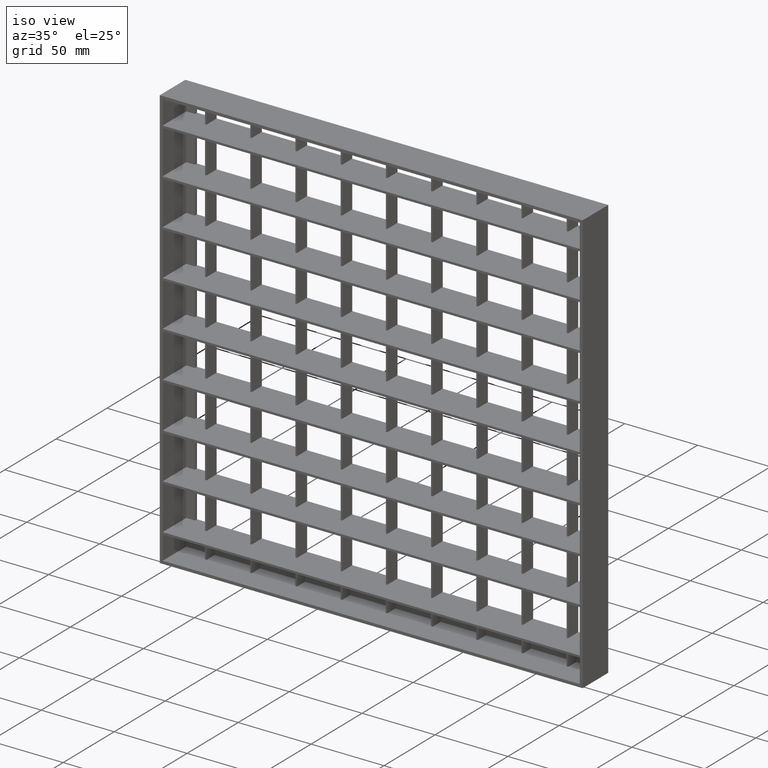
[diagram: clean part render]
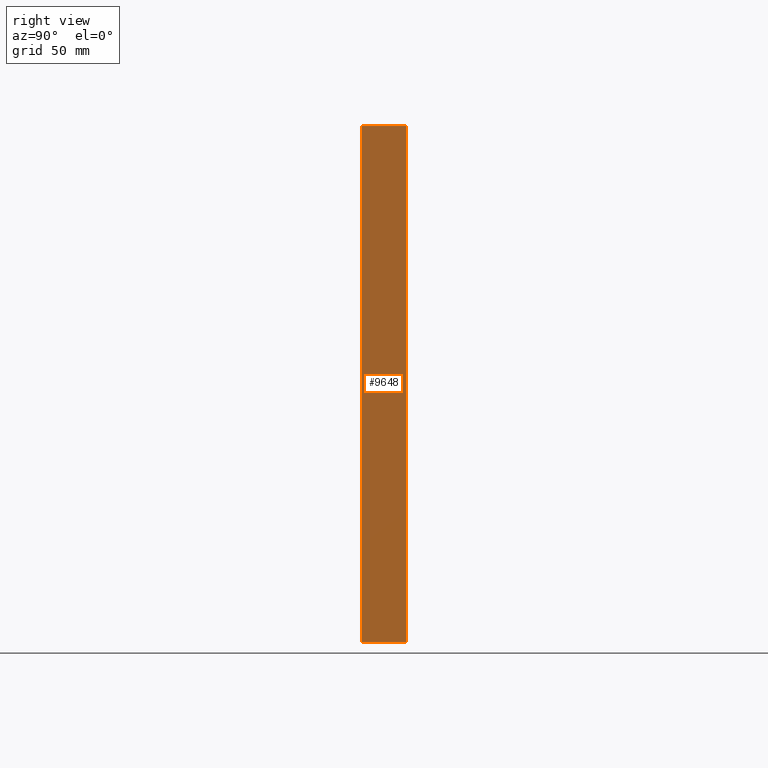
[diagram: tour spotlight — one face highlighted and labeled with its STEP entity id]
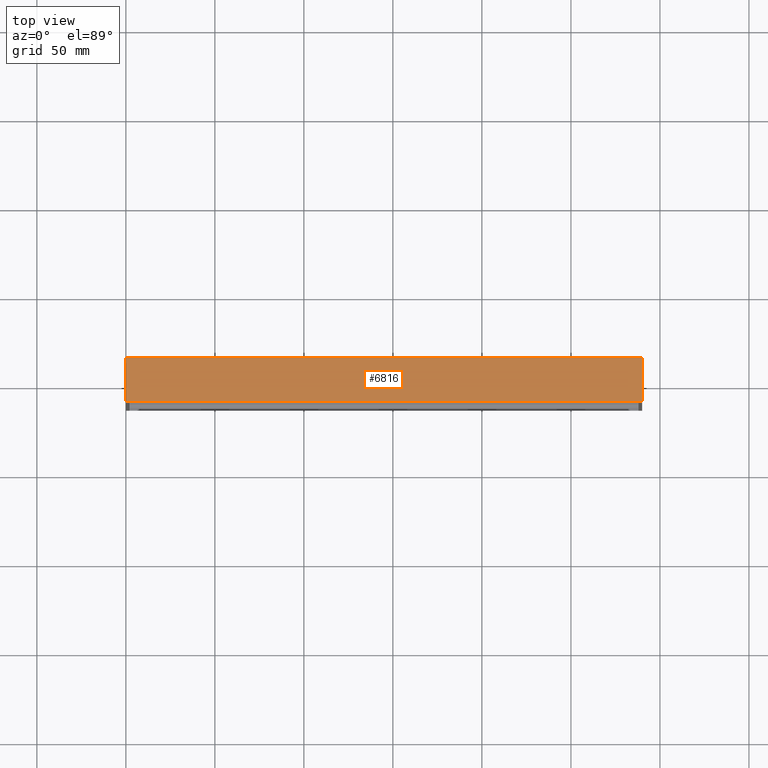
[diagram: tour spotlight — one face highlighted and labeled with its STEP entity id]
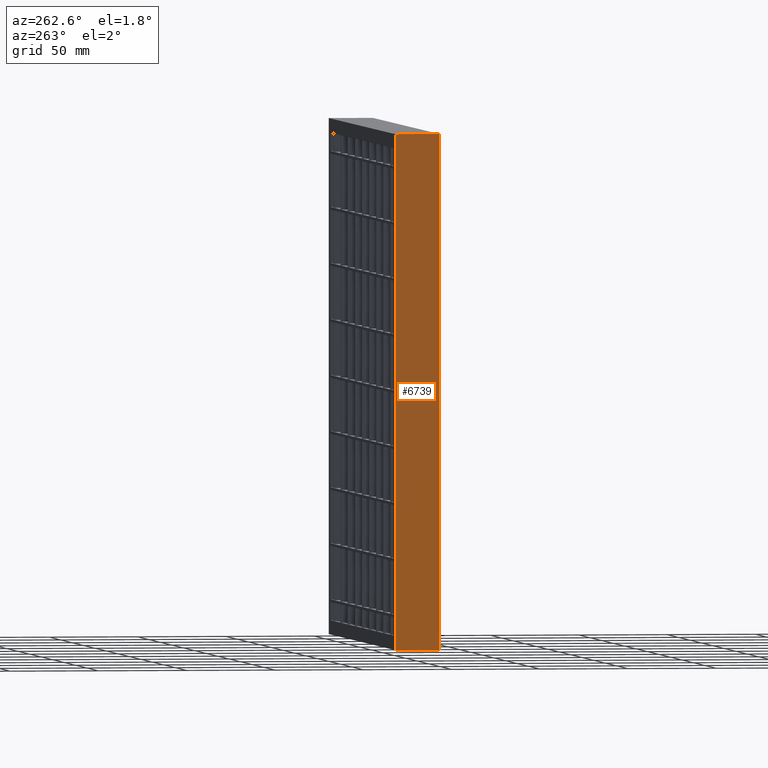
[diagram: tour spotlight — one face highlighted and labeled with its STEP entity id]
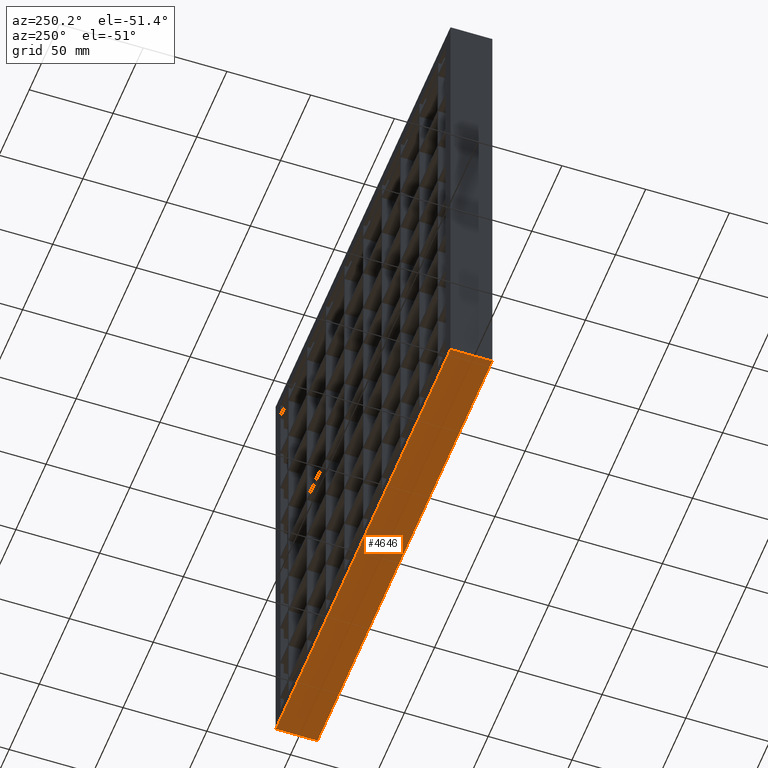
[diagram: tour spotlight — one face highlighted and labeled with its STEP entity id]
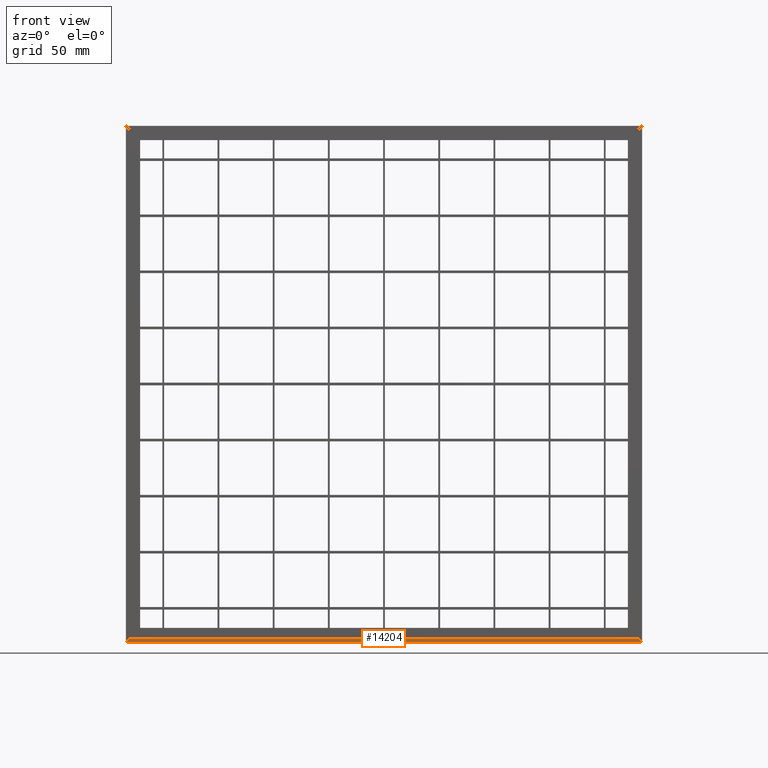
[diagram: tour spotlight — one face highlighted and labeled with its STEP entity id]
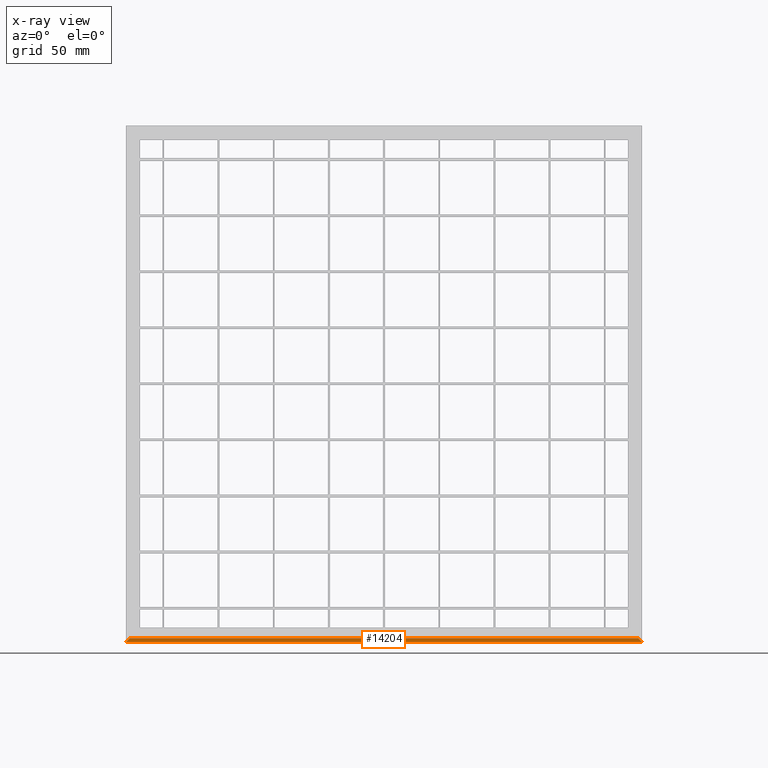
[diagram: x-ray of the same camera — body ghosted, this tour face saturated]
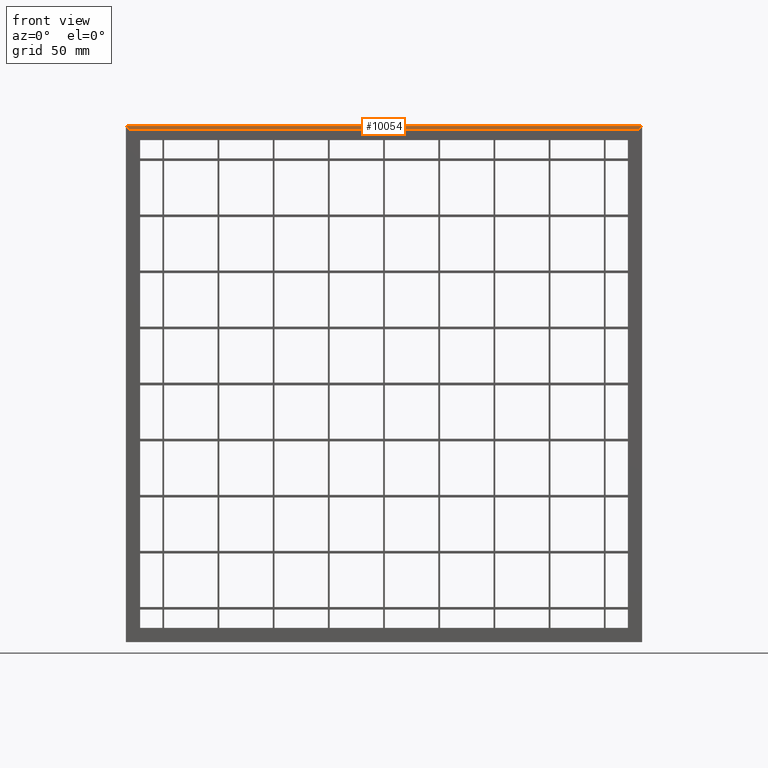
[diagram: tour spotlight — one face highlighted and labeled with its STEP entity id]
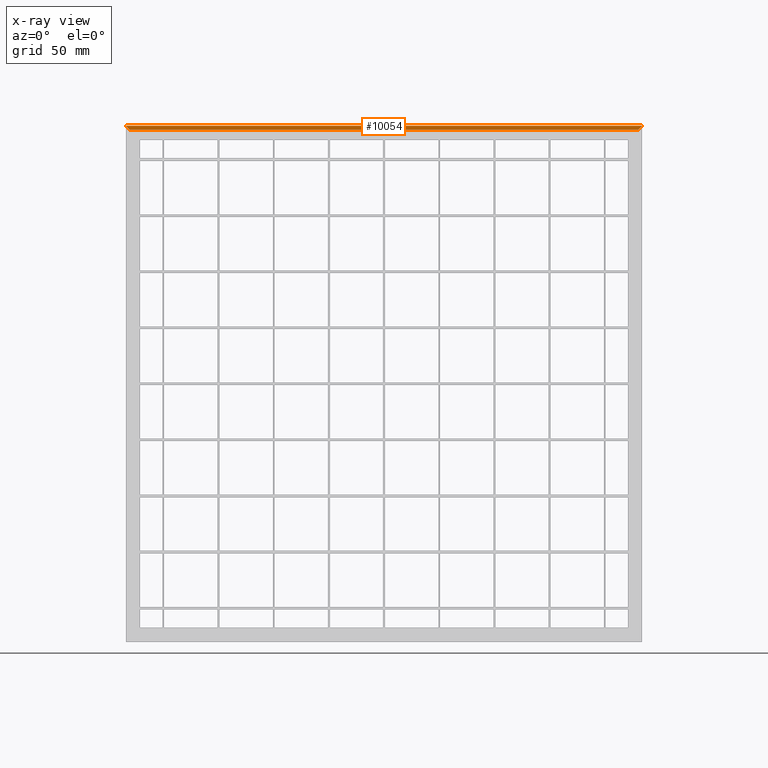
[diagram: x-ray of the same camera — body ghosted, this tour face saturated]
A machine part: a face-by-face anatomy tour. The part has 398 B-rep faces; the first image is the clean iso view, then the 6 largest visible faces are spotlighted one at a time (largest first), each with its STEP entity span.

Face 1 — right view, entity #9648. In plain terms, the highlighted planar face has unit normal (1, -0, -0).
Definition (entity closure, byte-faithful):
#131 = CARTESIAN_POINT ( 'NONE',  ( 290.0000000000000000, 12.49999999999992700, -290.0000000000000600 ) ) ;
#282 = PLANE ( 'NONE',  #1730 ) ;
#453 = VERTEX_POINT ( 'NONE', #12446 ) ;
#1379 = CARTESIAN_POINT ( 'NONE',  ( 289.9999999999999400, -12.50000000000000000, -290.0000000000000600 ) ) ;
#1593 = CARTESIAN_POINT ( 'NONE',  ( 290.0000000000000600, 12.50000000000000000, -290.0000000000000600 ) ) ;
#1730 = AXIS2_PLACEMENT_3D ( 'NONE', #131, #4954, #5098 ) ;
#1823 = DIRECTION ( 'NONE',  ( -3.061616997868384100E-016, -1.000000000000000000, -3.061616997868383600E-016 ) ) ;
#3007 = ORIENTED_EDGE ( 'NONE', *, *, #3016, .T. ) ;
#3016 = EDGE_CURVE ( 'NONE', #10768, #6659, #14050, .T. ) ;
#3110 = EDGE_CURVE ( 'NONE', #9230, #453, #12724, .T. ) ;
#3413 = VECTOR ( 'NONE', #8575, 1000.000000000000000 ) ;
#3688 = LINE ( 'NONE', #12394, #11150 ) ;
#4954 = DIRECTION ( 'NONE',  ( 1.000000000000000000, -3.061616997868383100E-016, -3.828355257328126300E-016 ) ) ;
#5098 = DIRECTION ( 'NONE',  ( -3.828355257328126300E-016, 0.0000000000000000000, -1.000000000000000000 ) ) ;
#5273 = EDGE_CURVE ( 'NONE', #6659, #453, #3688, .T. ) ;
#6377 = CARTESIAN_POINT ( 'NONE',  ( 290.0000000000000000, 12.49999999999992700, -290.0000000000000600 ) ) ;
#6524 = CARTESIAN_POINT ( 'NONE',  ( 290.0000000000001700, 12.50000000000000000, 0.0000000000000000000 ) ) ;
#6659 = VERTEX_POINT ( 'NONE', #6524 ) ;
#7747 = DIRECTION ( 'NONE',  ( 3.061616997868381700E-016, 1.000000000000000000, -3.061616997868383100E-016 ) ) ;
#7856 = LINE ( 'NONE', #6377, #10106 ) ;
#8054 = EDGE_LOOP ( 'NONE', ( #3007, #9274, #12012, #9177 ) ) ;
#8575 = DIRECTION ( 'NONE',  ( 3.828355257328126300E-016, 0.0000000000000000000, 1.000000000000000000 ) ) ;
#9177 = ORIENTED_EDGE ( 'NONE', *, *, #11193, .T. ) ;
#9230 = VERTEX_POINT ( 'NONE', #1379 ) ;
#9274 = ORIENTED_EDGE ( 'NONE', *, *, #5273, .T. ) ;
#9648 = ADVANCED_FACE ( 'NONE', ( #12526 ), #282, .T. ) ;
#9978 = DIRECTION ( 'NONE',  ( 3.828355257328126300E-016, 0.0000000000000000000, 1.000000000000000000 ) ) ;
#10106 = VECTOR ( 'NONE', #7747, 1000.000000000000000 ) ;
#10768 = VERTEX_POINT ( 'NONE', #1593 ) ;
#11015 = CARTESIAN_POINT ( 'NONE',  ( 290.0000000000000600, 12.50000000000000000, -290.0000000000000600 ) ) ;
#11150 = VECTOR ( 'NONE', #1823, 1000.000000000000000 ) ;
#11193 = EDGE_CURVE ( 'NONE', #9230, #10768, #7856, .T. ) ;
#12012 = ORIENTED_EDGE ( 'NONE', *, *, #3110, .F. ) ;
#12355 = VECTOR ( 'NONE', #9978, 1000.000000000000000 ) ;
#12394 = CARTESIAN_POINT ( 'NONE',  ( 290.0000000000001100, 12.49999999999984000, 0.0000000000000000000 ) ) ;
#12446 = CARTESIAN_POINT ( 'NONE',  ( 290.0000000000000600, -12.50000000000000000, -1.110223024625156500E-013 ) ) ;
#12458 = CARTESIAN_POINT ( 'NONE',  ( 289.9999999999999400, -12.50000000000000000, -290.0000000000000600 ) ) ;
#12526 = FACE_OUTER_BOUND ( 'NONE', #8054, .T. ) ;
#12724 = LINE ( 'NONE', #12458, #12355 ) ;
#14050 = LINE ( 'NONE', #11015, #3413 ) ;

Face 2 — top view, entity #6816. In plain terms, the highlighted planar face has unit normal (0, 0, -1).
Definition (entity closure, byte-faithful):
#453 = VERTEX_POINT ( 'NONE', #12446 ) ;
#561 = EDGE_CURVE ( 'NONE', #15426, #14761, #2979, .T. ) ;
#633 = CARTESIAN_POINT ( 'NONE',  ( -7.638833684238133700E-029, 12.50000000000000000, -2.652167332134823500E-014 ) ) ;
#710 = CARTESIAN_POINT ( 'NONE',  ( -7.638833684238133700E-029, 12.50000000000000000, -2.652167332134823500E-014 ) ) ;
#1077 = VECTOR ( 'NONE', #2665, 1000.000000000000000 ) ;
#1823 = DIRECTION ( 'NONE',  ( -3.061616997868384100E-016, -1.000000000000000000, -3.061616997868383600E-016 ) ) ;
#2046 = ORIENTED_EDGE ( 'NONE', *, *, #561, .F. ) ;
#2305 = DIRECTION ( 'NONE',  ( 9.145404593568370800E-017, 3.061616997868383100E-016, -1.000000000000000000 ) ) ;
#2665 = DIRECTION ( 'NONE',  ( -1.000000000000000000, 0.0000000000000000000, -9.145404593568370800E-017 ) ) ;
#2979 = B_SPLINE_CURVE_WITH_KNOTS ( 'NONE', 3,
 ( #5620, #10370, #15152, #710 ),
 .UNSPECIFIED., .F., .F.,
 ( 4, 4 ),
 ( 0.0000000000000000000, 1.000000000000000000 ),
 .UNSPECIFIED. ) ;
#3387 = EDGE_CURVE ( 'NONE', #6659, #14761, #9196, .T. ) ;
#3688 = LINE ( 'NONE', #12394, #11150 ) ;
#5211 = EDGE_CURVE ( 'NONE', #453, #15426, #12066, .T. ) ;
#5273 = EDGE_CURVE ( 'NONE', #6659, #453, #3688, .T. ) ;
#5574 = DIRECTION ( 'NONE',  ( -1.000000000000000000, 0.0000000000000000000, -9.145404593568370800E-017 ) ) ;
#5620 = CARTESIAN_POINT ( 'NONE',  ( 1.377727649040772400E-015, -12.50000000000000000, -8.326672684688674100E-014 ) ) ;
#6524 = CARTESIAN_POINT ( 'NONE',  ( 290.0000000000001700, 12.50000000000000000, 0.0000000000000000000 ) ) ;
#6659 = VERTEX_POINT ( 'NONE', #6524 ) ;
#6816 = ADVANCED_FACE ( 'NONE', ( #14881 ), #12821, .F. ) ;
#8614 = CARTESIAN_POINT ( 'NONE',  ( 290.0000000000000600, -12.50000000000000000, -1.110223024625156500E-013 ) ) ;
#9196 = LINE ( 'NONE', #12546, #14031 ) ;
#10140 = ORIENTED_EDGE ( 'NONE', *, *, #5211, .F. ) ;
#10370 = CARTESIAN_POINT ( 'NONE',  ( 2.041077998578935400E-016, -4.166666666666667900, -1.665334536937734800E-013 ) ) ;
#10599 = EDGE_LOOP ( 'NONE', ( #10993, #2046, #10140, #15116 ) ) ;
#10993 = ORIENTED_EDGE ( 'NONE', *, *, #3387, .T. ) ;
#11010 = AXIS2_PLACEMENT_3D ( 'NONE', #14032, #2305, #14196 ) ;
#11150 = VECTOR ( 'NONE', #1823, 1000.000000000000000 ) ;
#12066 = LINE ( 'NONE', #8614, #1077 ) ;
#12394 = CARTESIAN_POINT ( 'NONE',  ( 290.0000000000001100, 12.49999999999984000, 0.0000000000000000000 ) ) ;
#12446 = CARTESIAN_POINT ( 'NONE',  ( 290.0000000000000600, -12.50000000000000000, -1.110223024625156500E-013 ) ) ;
#12546 = CARTESIAN_POINT ( 'NONE',  ( 290.0000000000001700, 12.50000000000000000, 0.0000000000000000000 ) ) ;
#12821 = PLANE ( 'NONE',  #11010 ) ;
#13622 = CARTESIAN_POINT ( 'NONE',  ( 1.377727649040772400E-015, -12.50000000000000000, -8.326672684688674100E-014 ) ) ;
#14031 = VECTOR ( 'NONE', #5574, 1000.000000000000000 ) ;
#14032 = CARTESIAN_POINT ( 'NONE',  ( 290.0000000000001100, 12.49999999999984000, 0.0000000000000000000 ) ) ;
#14196 = DIRECTION ( 'NONE',  ( 0.0000000000000000000, 1.000000000000000000, 3.061616997868383100E-016 ) ) ;
#14761 = VERTEX_POINT ( 'NONE', #633 ) ;
#14881 = FACE_OUTER_BOUND ( 'NONE', #10599, .T. ) ;
#15116 = ORIENTED_EDGE ( 'NONE', *, *, #5273, .F. ) ;
#15152 = CARTESIAN_POINT ( 'NONE',  ( -2.347239698365760200E-015, 4.166666666666667900, -1.665334536937734800E-013 ) ) ;
#15426 = VERTEX_POINT ( 'NONE', #13622 ) ;

Face 3 — auxiliary view, entity #6739. In plain terms, the highlighted planar face has unit normal (-1, -0, 0).
Definition (entity closure, byte-faithful):
#561 = EDGE_CURVE ( 'NONE', #15426, #14761, #2979, .T. ) ;
#633 = CARTESIAN_POINT ( 'NONE',  ( -7.638833684238133700E-029, 12.50000000000000000, -2.652167332134823500E-014 ) ) ;
#710 = CARTESIAN_POINT ( 'NONE',  ( -7.638833684238133700E-029, 12.50000000000000000, -2.652167332134823500E-014 ) ) ;
#943 = DIRECTION ( 'NONE',  ( -0.0000000000000000000, -0.0000000000000000000, 1.000000000000000000 ) ) ;
#1401 = CARTESIAN_POINT ( 'NONE',  ( -4.898587196589417800E-015, 12.50000000000001600, -290.0000000000000600 ) ) ;
#2205 = LINE ( 'NONE', #12430, #5002 ) ;
#2334 = EDGE_LOOP ( 'NONE', ( #13788, #9408, #12205, #2378 ) ) ;
#2378 = ORIENTED_EDGE ( 'NONE', *, *, #7105, .T. ) ;
#2905 = FACE_OUTER_BOUND ( 'NONE', #2334, .T. ) ;
#2979 = B_SPLINE_CURVE_WITH_KNOTS ( 'NONE', 3,
 ( #5620, #10370, #15152, #710 ),
 .UNSPECIFIED., .F., .F.,
 ( 4, 4 ),
 ( 0.0000000000000000000, 1.000000000000000000 ),
 .UNSPECIFIED. ) ;
#3188 = CARTESIAN_POINT ( 'NONE',  ( -4.898587196589413000E-015, 12.50000000000000000, -342.4976189936268200 ) ) ;
#3490 = CARTESIAN_POINT ( 'NONE',  ( 2.755455298081544800E-015, -12.50000000000000000, -290.0000000000000600 ) ) ;
#4343 = DIRECTION ( 'NONE',  ( 3.061616997868383600E-016, -1.000000000000000000, 0.0000000000000000000 ) ) ;
#4453 = DIRECTION ( 'NONE',  ( -1.000000000000000000, -3.061616997868383600E-016, 0.0000000000000000000 ) ) ;
#4850 = EDGE_CURVE ( 'NONE', #12234, #14761, #2205, .T. ) ;
#5002 = VECTOR ( 'NONE', #943, 1000.000000000000000 ) ;
#5416 = DIRECTION ( 'NONE',  ( -0.0000000000000000000, -0.0000000000000000000, 1.000000000000000000 ) ) ;
#5598 = VERTEX_POINT ( 'NONE', #3490 ) ;
#5620 = CARTESIAN_POINT ( 'NONE',  ( 1.377727649040772400E-015, -12.50000000000000000, -8.326672684688674100E-014 ) ) ;
#6739 = ADVANCED_FACE ( 'NONE', ( #2905 ), #10238, .T. ) ;
#7105 = EDGE_CURVE ( 'NONE', #12234, #5598, #11104, .T. ) ;
#8712 = LINE ( 'NONE', #12498, #13162 ) ;
#8743 = CARTESIAN_POINT ( 'NONE',  ( -4.898587196589413000E-015, 12.50000000000000000, -290.0000000000000600 ) ) ;
#9408 = ORIENTED_EDGE ( 'NONE', *, *, #561, .T. ) ;
#10238 = PLANE ( 'NONE',  #10718 ) ;
#10370 = CARTESIAN_POINT ( 'NONE',  ( 2.041077998578935400E-016, -4.166666666666667900, -1.665334536937734800E-013 ) ) ;
#10718 = AXIS2_PLACEMENT_3D ( 'NONE', #3188, #4453, #4343 ) ;
#11104 = LINE ( 'NONE', #1401, #13159 ) ;
#12205 = ORIENTED_EDGE ( 'NONE', *, *, #4850, .F. ) ;
#12234 = VERTEX_POINT ( 'NONE', #8743 ) ;
#12430 = CARTESIAN_POINT ( 'NONE',  ( -4.898587196589413000E-015, 12.50000000000000000, -342.4976189936268200 ) ) ;
#12498 = CARTESIAN_POINT ( 'NONE',  ( 2.755455298081544800E-015, -12.50000000000000000, -342.4976189936268200 ) ) ;
#13159 = VECTOR ( 'NONE', #14624, 1000.000000000000000 ) ;
#13162 = VECTOR ( 'NONE', #5416, 1000.000000000000000 ) ;
#13622 = CARTESIAN_POINT ( 'NONE',  ( 1.377727649040772400E-015, -12.50000000000000000, -8.326672684688674100E-014 ) ) ;
#13788 = ORIENTED_EDGE ( 'NONE', *, *, #15398, .T. ) ;
#14624 = DIRECTION ( 'NONE',  ( 3.061616997868383600E-016, -1.000000000000000000, 3.061616997868383100E-016 ) ) ;
#14761 = VERTEX_POINT ( 'NONE', #633 ) ;
#15152 = CARTESIAN_POINT ( 'NONE',  ( -2.347239698365760200E-015, 4.166666666666667900, -1.665334536937734800E-013 ) ) ;
#15398 = EDGE_CURVE ( 'NONE', #5598, #15426, #8712, .T. ) ;
#15426 = VERTEX_POINT ( 'NONE', #13622 ) ;

Face 4 — auxiliary view, entity #4646. In plain terms, the highlighted planar face has unit normal (-0, 0, 1).
Definition (entity closure, byte-faithful):
#199 = DIRECTION ( 'NONE',  ( -0.0000000000000000000, 3.061616997868383100E-016, 1.000000000000000000 ) ) ;
#653 = EDGE_CURVE ( 'NONE', #12234, #10768, #4575, .T. ) ;
#1379 = CARTESIAN_POINT ( 'NONE',  ( 289.9999999999999400, -12.50000000000000000, -290.0000000000000600 ) ) ;
#1401 = CARTESIAN_POINT ( 'NONE',  ( -4.898587196589417800E-015, 12.50000000000001600, -290.0000000000000600 ) ) ;
#1465 = PLANE ( 'NONE',  #12562 ) ;
#1593 = CARTESIAN_POINT ( 'NONE',  ( 290.0000000000000600, 12.50000000000000000, -290.0000000000000600 ) ) ;
#2180 = EDGE_LOOP ( 'NONE', ( #13277, #10001, #9776, #9705 ) ) ;
#3490 = CARTESIAN_POINT ( 'NONE',  ( 2.755455298081544800E-015, -12.50000000000000000, -290.0000000000000600 ) ) ;
#4575 = LINE ( 'NONE', #13859, #11081 ) ;
#4646 = ADVANCED_FACE ( 'NONE', ( #4654 ), #1465, .F. ) ;
#4654 = FACE_OUTER_BOUND ( 'NONE', #2180, .T. ) ;
#4695 = LINE ( 'NONE', #10154, #15391 ) ;
#4975 = CARTESIAN_POINT ( 'NONE',  ( -4.898587196589417800E-015, 12.50000000000001600, -290.0000000000000600 ) ) ;
#5598 = VERTEX_POINT ( 'NONE', #3490 ) ;
#6377 = CARTESIAN_POINT ( 'NONE',  ( 290.0000000000000000, 12.49999999999992700, -290.0000000000000600 ) ) ;
#7105 = EDGE_CURVE ( 'NONE', #12234, #5598, #11104, .T. ) ;
#7747 = DIRECTION ( 'NONE',  ( 3.061616997868381700E-016, 1.000000000000000000, -3.061616997868383100E-016 ) ) ;
#7856 = LINE ( 'NONE', #6377, #10106 ) ;
#8743 = CARTESIAN_POINT ( 'NONE',  ( -4.898587196589413000E-015, 12.50000000000000000, -290.0000000000000600 ) ) ;
#9230 = VERTEX_POINT ( 'NONE', #1379 ) ;
#9705 = ORIENTED_EDGE ( 'NONE', *, *, #653, .T. ) ;
#9776 = ORIENTED_EDGE ( 'NONE', *, *, #7105, .F. ) ;
#10001 = ORIENTED_EDGE ( 'NONE', *, *, #10303, .F. ) ;
#10106 = VECTOR ( 'NONE', #7747, 1000.000000000000000 ) ;
#10154 = CARTESIAN_POINT ( 'NONE',  ( 2.755455298081544800E-015, -12.50000000000000000, -290.0000000000000600 ) ) ;
#10303 = EDGE_CURVE ( 'NONE', #5598, #9230, #4695, .T. ) ;
#10768 = VERTEX_POINT ( 'NONE', #1593 ) ;
#11081 = VECTOR ( 'NONE', #15314, 1000.000000000000000 ) ;
#11104 = LINE ( 'NONE', #1401, #13159 ) ;
#11193 = EDGE_CURVE ( 'NONE', #9230, #10768, #7856, .T. ) ;
#12234 = VERTEX_POINT ( 'NONE', #8743 ) ;
#12562 = AXIS2_PLACEMENT_3D ( 'NONE', #4975, #199, #14472 ) ;
#13159 = VECTOR ( 'NONE', #14624, 1000.000000000000000 ) ;
#13277 = ORIENTED_EDGE ( 'NONE', *, *, #11193, .F. ) ;
#13645 = DIRECTION ( 'NONE',  ( 1.000000000000000000, 0.0000000000000000000, 0.0000000000000000000 ) ) ;
#13859 = CARTESIAN_POINT ( 'NONE',  ( -4.898587196589413000E-015, 12.50000000000000000, -290.0000000000000600 ) ) ;
#14472 = DIRECTION ( 'NONE',  ( 0.0000000000000000000, -1.000000000000000000, 3.061616997868383100E-016 ) ) ;
#14624 = DIRECTION ( 'NONE',  ( 3.061616997868383600E-016, -1.000000000000000000, 3.061616997868383100E-016 ) ) ;
#15314 = DIRECTION ( 'NONE',  ( 1.000000000000000000, 0.0000000000000000000, 0.0000000000000000000 ) ) ;
#15391 = VECTOR ( 'NONE', #13645, 1000.000000000000000 ) ;

Face 5 — front view, entity #14204. An x-ray twin of the same camera follows (body ghosted, this face saturated) — the face is partly hidden behind the body. In plain terms, the highlighted planar face has unit normal (0, 1, 0).
Definition (entity closure, byte-faithful):
#328 = CARTESIAN_POINT ( 'NONE',  ( 2.000000000000002700, -12.50000000000000000, -288.0000000000000600 ) ) ;
#392 = DIRECTION ( 'NONE',  ( 0.0000000000000000000, -0.0000000000000000000, 1.000000000000000000 ) ) ;
#1021 = CARTESIAN_POINT ( 'NONE',  ( 288.0000000000000000, -12.50000000000000000, -288.0000000000000600 ) ) ;
#1354 = DIRECTION ( 'NONE',  ( 0.7071067811865473500, 0.0000000000000000000, -0.7071067811865477900 ) ) ;
#1379 = CARTESIAN_POINT ( 'NONE',  ( 289.9999999999999400, -12.50000000000000000, -290.0000000000000600 ) ) ;
#2414 = LINE ( 'NONE', #4910, #9690 ) ;
#2663 = DIRECTION ( 'NONE',  ( 0.7071067811865474600, 0.0000000000000000000, 0.7071067811865474600 ) ) ;
#2757 = PLANE ( 'NONE',  #8435 ) ;
#3490 = CARTESIAN_POINT ( 'NONE',  ( 2.755455298081544800E-015, -12.50000000000000000, -290.0000000000000600 ) ) ;
#4295 = ORIENTED_EDGE ( 'NONE', *, *, #14049, .F. ) ;
#4695 = LINE ( 'NONE', #10154, #15391 ) ;
#4910 = CARTESIAN_POINT ( 'NONE',  ( 2.000000000000002700, -12.50000000000000000, -288.0000000000000600 ) ) ;
#5184 = FACE_OUTER_BOUND ( 'NONE', #8699, .T. ) ;
#5598 = VERTEX_POINT ( 'NONE', #3490 ) ;
#5921 = VERTEX_POINT ( 'NONE', #328 ) ;
#7009 = LINE ( 'NONE', #14738, #13561 ) ;
#7353 = DIRECTION ( 'NONE',  ( 0.0000000000000000000, 1.000000000000000000, 0.0000000000000000000 ) ) ;
#7468 = CARTESIAN_POINT ( 'NONE',  ( 145.0000000000000600, -12.50000000000000000, -145.0000000000000600 ) ) ;
#7651 = VECTOR ( 'NONE', #1354, 999.9999999999998900 ) ;
#7720 = ORIENTED_EDGE ( 'NONE', *, *, #15261, .F. ) ;
#8435 = AXIS2_PLACEMENT_3D ( 'NONE', #12188, #7353, #392 ) ;
#8699 = EDGE_LOOP ( 'NONE', ( #11183, #4295, #7720, #13505 ) ) ;
#9032 = VERTEX_POINT ( 'NONE', #1021 ) ;
#9230 = VERTEX_POINT ( 'NONE', #1379 ) ;
#9690 = VECTOR ( 'NONE', #14406, 1000.000000000000000 ) ;
#10078 = LINE ( 'NONE', #7468, #7651 ) ;
#10154 = CARTESIAN_POINT ( 'NONE',  ( 2.755455298081544800E-015, -12.50000000000000000, -290.0000000000000600 ) ) ;
#10303 = EDGE_CURVE ( 'NONE', #5598, #9230, #4695, .T. ) ;
#11183 = ORIENTED_EDGE ( 'NONE', *, *, #11757, .F. ) ;
#11757 = EDGE_CURVE ( 'NONE', #9032, #9230, #10078, .T. ) ;
#12188 = CARTESIAN_POINT ( 'NONE',  ( -26.24880949681337900, -12.50000000000000000, -316.2488094968134100 ) ) ;
#13505 = ORIENTED_EDGE ( 'NONE', *, *, #10303, .T. ) ;
#13561 = VECTOR ( 'NONE', #2663, 1000.000000000000100 ) ;
#13645 = DIRECTION ( 'NONE',  ( 1.000000000000000000, 0.0000000000000000000, 0.0000000000000000000 ) ) ;
#14049 = EDGE_CURVE ( 'NONE', #5921, #9032, #2414, .T. ) ;
#14204 = ADVANCED_FACE ( 'NONE', ( #5184 ), #2757, .F. ) ;
#14406 = DIRECTION ( 'NONE',  ( 1.000000000000000000, 0.0000000000000000000, 0.0000000000000000000 ) ) ;
#14738 = CARTESIAN_POINT ( 'NONE',  ( -26.24880949681337900, -12.50000000000000000, -316.2488094968134100 ) ) ;
#15261 = EDGE_CURVE ( 'NONE', #5598, #5921, #7009, .T. ) ;
#15391 = VECTOR ( 'NONE', #13645, 1000.000000000000000 ) ;

Face 6 — front view, entity #10054. An x-ray twin of the same camera follows (body ghosted, this face saturated) — the face is partly hidden behind the body. In plain terms, the highlighted planar face has unit normal (0, 1, 0).
Definition (entity closure, byte-faithful):
#66 = VECTOR ( 'NONE', #11934, 1000.000000000000000 ) ;
#453 = VERTEX_POINT ( 'NONE', #12446 ) ;
#1077 = VECTOR ( 'NONE', #2665, 1000.000000000000000 ) ;
#2665 = DIRECTION ( 'NONE',  ( -1.000000000000000000, 0.0000000000000000000, -9.145404593568370800E-017 ) ) ;
#3368 = DIRECTION ( 'NONE',  ( 0.0000000000000000000, -0.0000000000000000000, 1.000000000000000000 ) ) ;
#3886 = ORIENTED_EDGE ( 'NONE', *, *, #5214, .F. ) ;
#3978 = CARTESIAN_POINT ( 'NONE',  ( 0.6666666666666298800, -12.50000000000000000, -0.6666666666667042700 ) ) ;
#4886 = FACE_OUTER_BOUND ( 'NONE', #5566, .T. ) ;
#5167 = CARTESIAN_POINT ( 'NONE',  ( 1.333333333333287700, -12.50000000000000000, -1.333333333333353000 ) ) ;
#5211 = EDGE_CURVE ( 'NONE', #453, #15426, #12066, .T. ) ;
#5214 = EDGE_CURVE ( 'NONE', #13330, #15426, #11095, .T. ) ;
#5566 = EDGE_LOOP ( 'NONE', ( #3886, #12425, #12378, #8994 ) ) ;
#5611 = DIRECTION ( 'NONE',  ( 0.0000000000000000000, 1.000000000000000000, 0.0000000000000000000 ) ) ;
#5680 = LINE ( 'NONE', #13190, #66 ) ;
#7159 = VECTOR ( 'NONE', #9283, 1000.000000000000000 ) ;
#7184 = CARTESIAN_POINT ( 'NONE',  ( 288.0000000000001100, -12.50000000000000000, -2.000000000000057300 ) ) ;
#8127 = CARTESIAN_POINT ( 'NONE',  ( 145.0000000000000600, -12.50000000000000000, -145.0000000000000600 ) ) ;
#8551 = EDGE_CURVE ( 'NONE', #453, #13316, #5680, .T. ) ;
#8614 = CARTESIAN_POINT ( 'NONE',  ( 290.0000000000000600, -12.50000000000000000, -1.110223024625156500E-013 ) ) ;
#8980 = EDGE_CURVE ( 'NONE', #13316, #13330, #9959, .T. ) ;
#8994 = ORIENTED_EDGE ( 'NONE', *, *, #5211, .T. ) ;
#9283 = DIRECTION ( 'NONE',  ( -1.000000000000000000, 0.0000000000000000000, -9.145404593568370800E-017 ) ) ;
#9503 = CARTESIAN_POINT ( 'NONE',  ( 2.000000000000001800, -12.50000000000000000, -2.000000000000057300 ) ) ;
#9959 = LINE ( 'NONE', #11648, #7159 ) ;
#10054 = ADVANCED_FACE ( 'NONE', ( #4886 ), #11699, .F. ) ;
#10379 = AXIS2_PLACEMENT_3D ( 'NONE', #8127, #5611, #3368 ) ;
#11095 = B_SPLINE_CURVE_WITH_KNOTS ( 'NONE', 3,
 ( #13412, #5167, #3978, #12342 ),
 .UNSPECIFIED., .F., .F.,
 ( 4, 4 ),
 ( 0.0000000000000000000, 1.000000000000000000 ),
 .UNSPECIFIED. ) ;
#11648 = CARTESIAN_POINT ( 'NONE',  ( 288.0000000000001100, -12.50000000000000000, -2.000000000000057300 ) ) ;
#11699 = PLANE ( 'NONE',  #10379 ) ;
#11934 = DIRECTION ( 'NONE',  ( -0.7071067811865475700, 0.0000000000000000000, -0.7071067811865474600 ) ) ;
#12066 = LINE ( 'NONE', #8614, #1077 ) ;
#12342 = CARTESIAN_POINT ( 'NONE',  ( 1.377727649040772400E-015, -12.50000000000000000, -8.326672684688674100E-014 ) ) ;
#12378 = ORIENTED_EDGE ( 'NONE', *, *, #8551, .F. ) ;
#12425 = ORIENTED_EDGE ( 'NONE', *, *, #8980, .F. ) ;
#12446 = CARTESIAN_POINT ( 'NONE',  ( 290.0000000000000600, -12.50000000000000000, -1.110223024625156500E-013 ) ) ;
#13190 = CARTESIAN_POINT ( 'NONE',  ( 145.0000000000000600, -12.50000000000000000, -145.0000000000000600 ) ) ;
#13316 = VERTEX_POINT ( 'NONE', #7184 ) ;
#13330 = VERTEX_POINT ( 'NONE', #9503 ) ;
#13412 = CARTESIAN_POINT ( 'NONE',  ( 2.000000000000001800, -12.50000000000000000, -2.000000000000057300 ) ) ;
#13622 = CARTESIAN_POINT ( 'NONE',  ( 1.377727649040772400E-015, -12.50000000000000000, -8.326672684688674100E-014 ) ) ;
#15426 = VERTEX_POINT ( 'NONE', #13622 ) ;